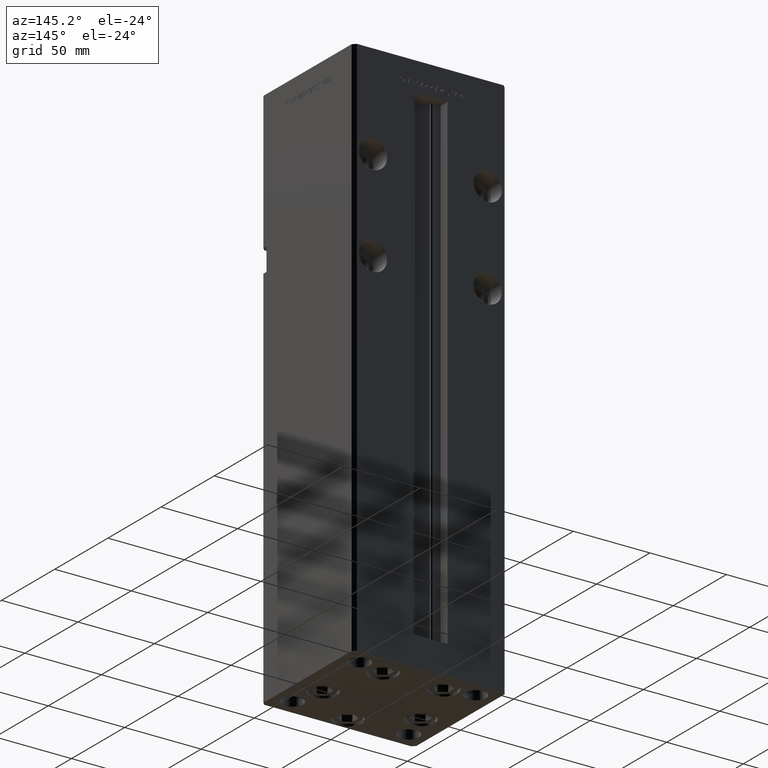
[diagram: clean part render]
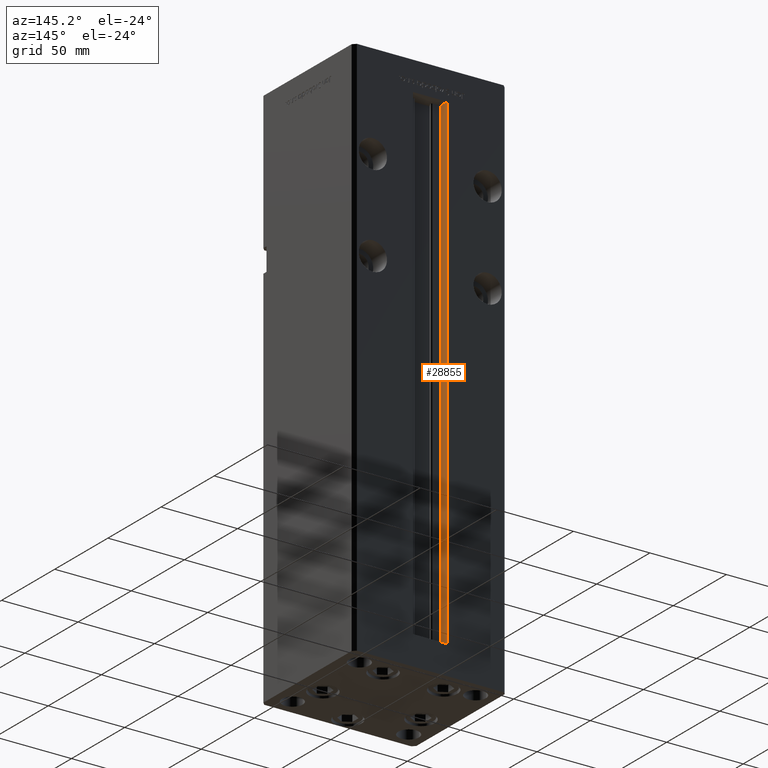
[diagram: same view with one face highlighted and labeled with its STEP entity id]
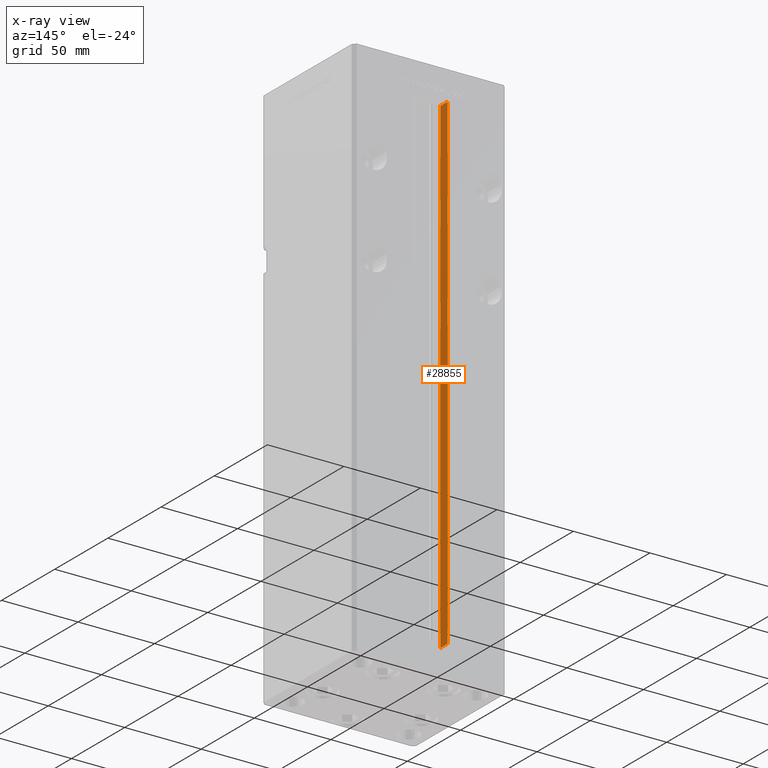
[diagram: x-ray of the same camera — body ghosted, the highlighted face saturated]
A machine part, auxiliary view. The second image highlights one B-rep face of the part: STEP entity #28855.
The next image is the same camera in x-ray: the body ghosted, the highlighted face saturated — about 0% of this face is hidden behind the body in this view.
In plain terms, the highlighted planar face has unit normal (-1, 0, 0).
Its self-contained STEP definition (entity closure, byte-faithful):
#6569 = EDGE_CURVE ( 'NONE', #16970, #38829, #13309, .T. ) ;
#7377 = LINE ( 'NONE', #11664, #30610 ) ;
#8445 = VERTEX_POINT ( 'NONE', #49671 ) ;
#8882 = EDGE_LOOP ( 'NONE', ( #31017, #52441, #52996, #21847 ) ) ;
#9057 = CARTESIAN_POINT ( 'NONE',  ( -11.24999999999999645, 37.00000000000000000, 318.5000000000000000 ) ) ;
#11664 = CARTESIAN_POINT ( 'NONE',  ( -11.24999999999999645, 43.50000000000000000, 0.000000000000000000 ) ) ;
#12356 = FACE_OUTER_BOUND ( 'NONE', #8882, .T. ) ;
#13309 = LINE ( 'NONE', #21128, #30348 ) ;
#16970 = VERTEX_POINT ( 'NONE', #9057 ) ;
#18538 = DIRECTION ( 'NONE',  ( -0.000000000000000000, -1.000000000000000000, -0.000000000000000000 ) ) ;
#18956 = DIRECTION ( 'NONE',  ( -0.000000000000000000, -0.000000000000000000, 1.000000000000000000 ) ) ;
#19082 = CARTESIAN_POINT ( 'NONE',  ( -11.24999999999999645, 37.00000000000000000, 0.000000000000000000 ) ) ;
#19579 = EDGE_CURVE ( 'NONE', #8445, #38829, #7377, .T. ) ;
#21128 = CARTESIAN_POINT ( 'NONE',  ( -11.24999999999999645, 0.000000000000000000, 318.5000000000000000 ) ) ;
#21847 = ORIENTED_EDGE ( 'NONE', *, *, #6569, .F. ) ;
#25540 = CARTESIAN_POINT ( 'NONE',  ( -11.24999999999999645, 37.00000000000000000, 0.000000000000000000 ) ) ;
#25711 = CARTESIAN_POINT ( 'NONE',  ( -11.24999999999999645, 37.00000000000000000, 0.000000000000000000 ) ) ;
#28787 = PLANE ( 'NONE',  #30868 ) ;
#28855 = ADVANCED_FACE ( 'NONE', ( #12356 ), #28787, .F. ) ;
#29045 = DIRECTION ( 'NONE',  ( -1.000000000000000000, 0.000000000000000000, 0.000000000000000000 ) ) ;
#30010 = DIRECTION ( 'NONE',  ( -0.000000000000000000, -0.000000000000000000, 1.000000000000000000 ) ) ;
#30348 = VECTOR ( 'NONE', #33751, 1000.000000000000000 ) ;
#30610 = VECTOR ( 'NONE', #18956, 1000.000000000000000 ) ;
#30868 = AXIS2_PLACEMENT_3D ( 'NONE', #25540, #29045, #45144 ) ;
#31017 = ORIENTED_EDGE ( 'NONE', *, *, #35445, .F. ) ;
#31177 = LINE ( 'NONE', #47539, #46330 ) ;
#33623 = EDGE_CURVE ( 'NONE', #8445, #35060, #31177, .T. ) ;
#33751 = DIRECTION ( 'NONE',  ( 0.000000000000000000, 1.000000000000000000, 0.000000000000000000 ) ) ;
#35060 = VERTEX_POINT ( 'NONE', #19082 ) ;
#35445 = EDGE_CURVE ( 'NONE', #35060, #16970, #46107, .T. ) ;
#38829 = VERTEX_POINT ( 'NONE', #40092 ) ;
#40092 = CARTESIAN_POINT ( 'NONE',  ( -11.24999999999999645, 43.50000000000000000, 318.5000000000000000 ) ) ;
#45144 = DIRECTION ( 'NONE',  ( 0.000000000000000000, 0.000000000000000000, 1.000000000000000000 ) ) ;
#46107 = LINE ( 'NONE', #25711, #50663 ) ;
#46330 = VECTOR ( 'NONE', #18538, 1000.000000000000000 ) ;
#47539 = CARTESIAN_POINT ( 'NONE',  ( -11.24999999999999645, 37.00000000000000000, 0.000000000000000000 ) ) ;
#49671 = CARTESIAN_POINT ( 'NONE',  ( -11.24999999999999645, 43.50000000000000000, 0.000000000000000000 ) ) ;
#50663 = VECTOR ( 'NONE', #30010, 1000.000000000000000 ) ;
#52441 = ORIENTED_EDGE ( 'NONE', *, *, #33623, .F. ) ;
#52996 = ORIENTED_EDGE ( 'NONE', *, *, #19579, .T. ) ;